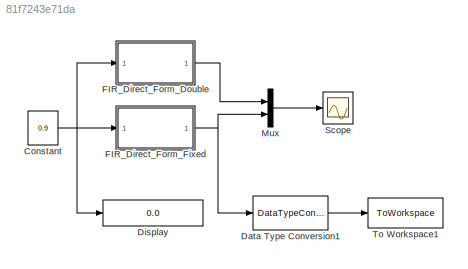
MODEL slx_81f7243e71da
KIND model
BLOCK [Constant] Constant
  OutDataTypeStr = fixdt(1,14,13)
  SampleTime = 1/50e6
  Value = 0.9
  VectorParams1D = off
BLOCK [DataTypeConversion] Data Type Conversion1
  OutDataTypeStr = double
  RndMeth = Floor
  SaturateOnIntegerOverflow = off
BLOCK [Display] Display
  Decimation = 1
  Format = long
  Lockdown = off
  Ports = [1]
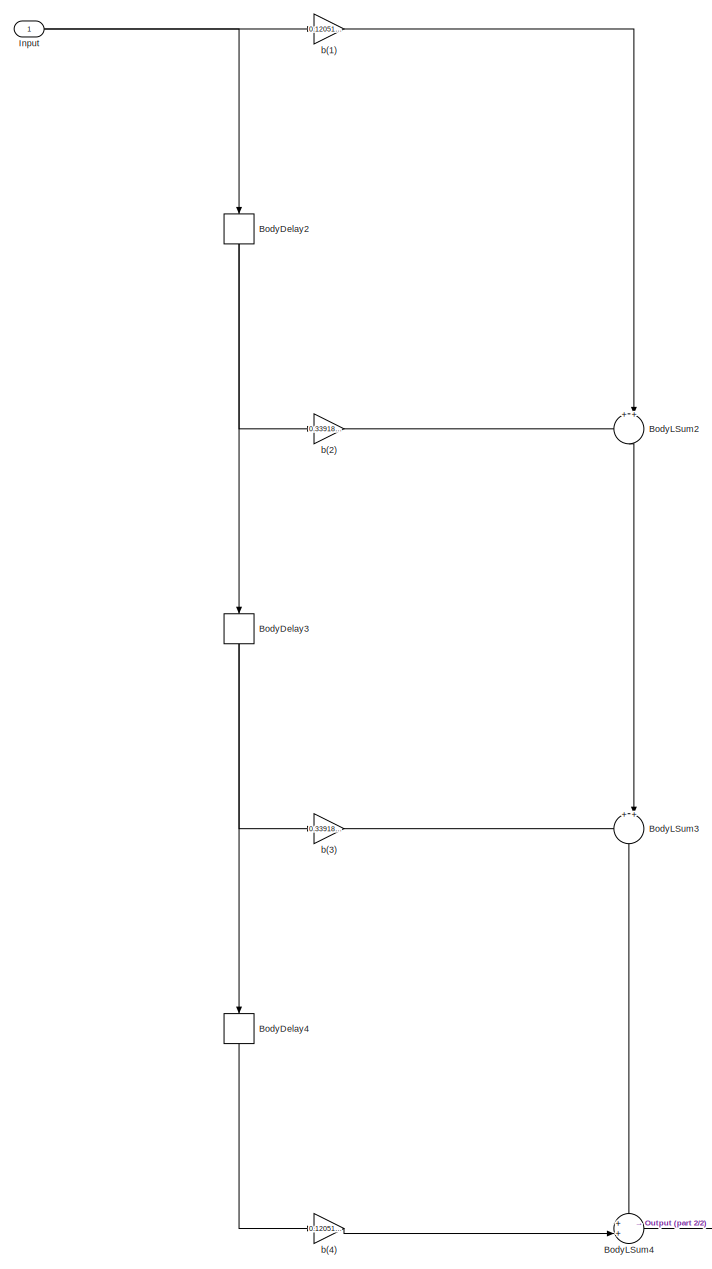
[diagram: FIR_Direct_Form_Double - part 1/2, most of the canvas]
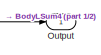
[diagram: FIR_Direct_Form_Double - part 2/2, bottom right region]
BLOCK [SubSystem] FIR_Direct_Form_Double
  ErrorFcn = dspFilterRealizedInBasicElemsAlgLoopErrFcnCallback
  FunctionWithSeparateData = off
  MaskHideContents = off
  MinAlgLoopOccurrences = off
  Opaque = off
  Ports = [1, 1]
  PropExecContextOutsideSubsystem = off
  RTWSystemCode = Auto
  RequestExecContextInheritance = off
  Tag = FilterWizardSubSystem
  UserDataPersistent = on
BLOCK [Delay] FIR_Direct_Form_Double/BodyDelay2
  DelayLength = 1
  InitialCondition = 0
  InputPortMap = u0
  Ports = [1, 1]
BLOCK [Delay] FIR_Direct_Form_Double/BodyDelay3
  DelayLength = 1
  InitialCondition = 0
  InputPortMap = u0
  Ports = [1, 1]
BLOCK [Delay] FIR_Direct_Form_Double/BodyDelay4
  DelayLength = 1
  InitialCondition = 0
  InputPortMap = u0
  Ports = [1, 1]
BLOCK [Sum] FIR_Direct_Form_Double/BodyLSum2
  IconShape = round
  InputSameDT = off
  Inputs = ++|
  Ports = [2, 1]
  RndMeth = Nearest
BLOCK [Sum] FIR_Direct_Form_Double/BodyLSum3
  IconShape = round
  InputSameDT = off
  Inputs = ++|
  Ports = [2, 1]
  RndMeth = Nearest
BLOCK [Sum] FIR_Direct_Form_Double/BodyLSum4
  IconShape = round
  InputSameDT = off
  Inputs = ++|
  Ports = [2, 1]
  RndMeth = Nearest
BLOCK [Inport] FIR_Direct_Form_Double/Input
  IconDisplay = Port number
BLOCK [Outport] FIR_Direct_Form_Double/Output
  IconDisplay = Port number
BLOCK [Gain] FIR_Direct_Form_Double/b(1)
  Gain = 0.12051560549583869
  ParamDataTypeStr = double
  RndMeth = Nearest
BLOCK [Gain] FIR_Direct_Form_Double/b(2)
  Gain = 0.33918588262345462
  ParamDataTypeStr = double
  RndMeth = Nearest
BLOCK [Gain] FIR_Direct_Form_Double/b(3)
  Gain = 0.33918588262345462
  ParamDataTypeStr = double
  RndMeth = Nearest
BLOCK [Gain] FIR_Direct_Form_Double/b(4)
  Gain = 0.12051560549583869
  ParamDataTypeStr = double
  RndMeth = Nearest
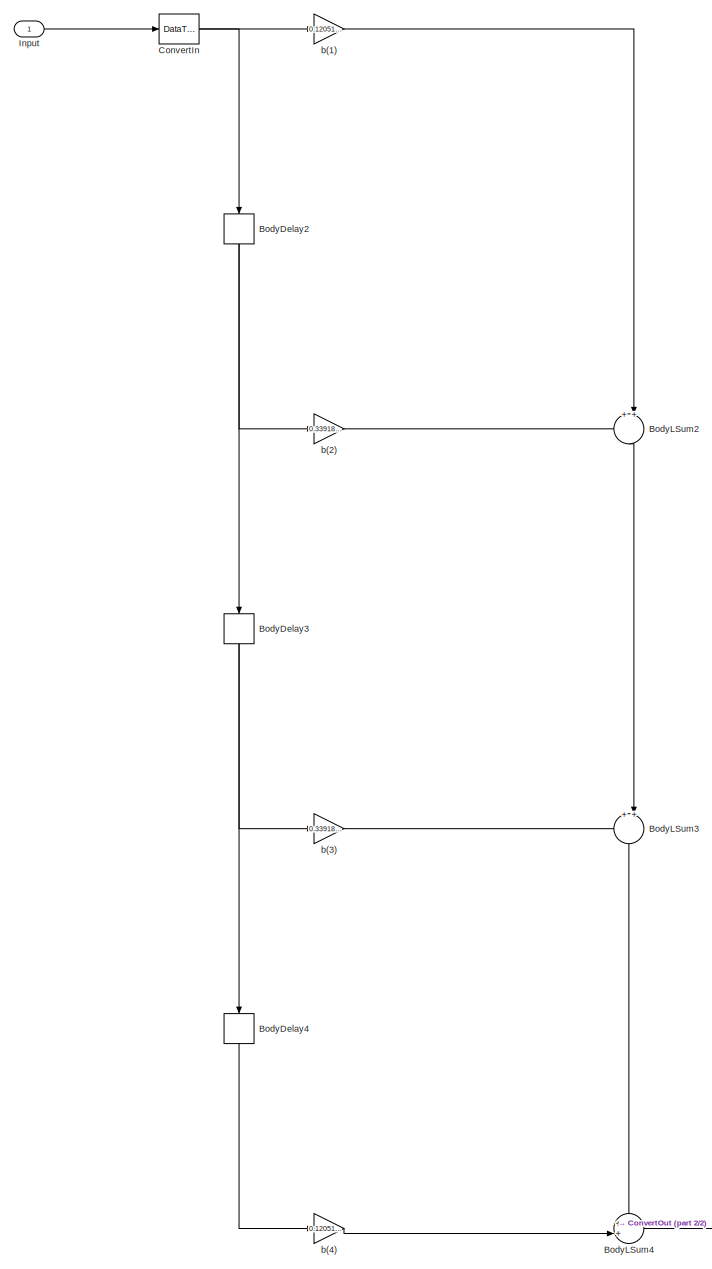
[diagram: FIR_Direct_Form_Fixed - part 1/2, most of the canvas]
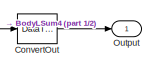
[diagram: FIR_Direct_Form_Fixed - part 2/2, bottom right region]
BLOCK [SubSystem] FIR_Direct_Form_Fixed
  ErrorFcn = dspFilterRealizedInBasicElemsAlgLoopErrFcnCallback
  FunctionWithSeparateData = off
  MaskHideContents = off
  MinAlgLoopOccurrences = off
  Opaque = off
  Ports = [1, 1]
  PropExecContextOutsideSubsystem = off
  RTWSystemCode = Auto
  RequestExecContextInheritance = off
  Tag = FilterWizardSubSystem
  UserDataPersistent = on
BLOCK [Delay] FIR_Direct_Form_Fixed/BodyDelay2
  DelayLength = 1
  InitialCondition = 0
  InputPortMap = u0
  Ports = [1, 1]
BLOCK [Delay] FIR_Direct_Form_Fixed/BodyDelay3
  DelayLength = 1
  InitialCondition = 0
  InputPortMap = u0
  Ports = [1, 1]
BLOCK [Delay] FIR_Direct_Form_Fixed/BodyDelay4
  DelayLength = 1
  InitialCondition = 0
  InputPortMap = u0
  Ports = [1, 1]
BLOCK [Sum] FIR_Direct_Form_Fixed/BodyLSum2
  AccumDataTypeStr = fixdt(1,22,21)
  IconShape = round
  InputSameDT = off
  Inputs = ++|
  OutDataTypeStr = fixdt(1,24,21)
  Ports = [2, 1]
  SaturateOnIntegerOverflow = off
BLOCK [Sum] FIR_Direct_Form_Fixed/BodyLSum3
  AccumDataTypeStr = fixdt(1,22,21)
  IconShape = round
  InputSameDT = off
  Inputs = ++|
  OutDataTypeStr = fixdt(1,24,21)
  Ports = [2, 1]
  SaturateOnIntegerOverflow = off
BLOCK [Sum] FIR_Direct_Form_Fixed/BodyLSum4
  AccumDataTypeStr = fixdt(1,22,21)
  IconShape = round
  InputSameDT = off
  Inputs = ++|
  OutDataTypeStr = fixdt(1,24,21)
  Ports = [2, 1]
  SaturateOnIntegerOverflow = off
BLOCK [DataTypeConversion] FIR_Direct_Form_Fixed/ConvertIn
  OutDataTypeStr = fixdt(1,14,13)
  RndMeth = Nearest
BLOCK [DataTypeConversion] FIR_Direct_Form_Fixed/ConvertOut
  OutDataTypeStr = fixdt(1,14,13)
  RndMeth = Floor
  SaturateOnIntegerOverflow = off
BLOCK [Inport] FIR_Direct_Form_Fixed/Input
  IconDisplay = Port number
BLOCK [Outport] FIR_Direct_Form_Fixed/Output
  IconDisplay = Port number
BLOCK [Gain] FIR_Direct_Form_Fixed/b(1)
  Gain = 0.12051560549583869
  OutDataTypeStr = fixdt(1,23,21)
  ParamDataTypeStr = fixdt(1,9,8)
  SaturateOnIntegerOverflow = off
BLOCK [Gain] FIR_Direct_Form_Fixed/b(2)
  Gain = 0.33918588262345462
  OutDataTypeStr = fixdt(1,23,21)
  ParamDataTypeStr = fixdt(1,9,8)
  SaturateOnIntegerOverflow = off
BLOCK [Gain] FIR_Direct_Form_Fixed/b(3)
  Gain = 0.33918588262345462
  OutDataTypeStr = fixdt(1,23,21)
  ParamDataTypeStr = fixdt(1,9,8)
  SaturateOnIntegerOverflow = off
BLOCK [Gain] FIR_Direct_Form_Fixed/b(4)
  Gain = 0.12051560549583869
  OutDataTypeStr = fixdt(1,23,21)
  ParamDataTypeStr = fixdt(1,9,8)
  SaturateOnIntegerOverflow = off
BLOCK [Mux] Mux
  DisplayOption = bar
  Inputs = 2
  Ports = [2, 1]
BLOCK [Scope] Scope
  DataFormat = StructureWithTime
  Floating = off
  LimitDataPoints = off
  NumInputPorts = 1
  Ports = [1]
  SampleTime = 0
  ShowLegends = off
  YMax = 0.85
  YMin = 0.1
  ZoomMode = xonly
BLOCK [ToWorkspace] To Workspace1
  MaxDataPoints = inf
  Ports = [1]
  SampleTime = -1
  SaveFormat = Timeseries
  VariableName = FIR_Output
NET Constant:1 -> Display:1, FIR_Direct_Form_Double:1, FIR_Direct_Form_Fixed:1
LINE Data Type Conversion1:1 -> To Workspace1:1
NET FIR_Direct_Form_Double/BodyDelay2:1 -> FIR_Direct_Form_Double/BodyDelay3:1, FIR_Direct_Form_Double/b(2):1
NET FIR_Direct_Form_Double/BodyDelay3:1 -> FIR_Direct_Form_Double/BodyDelay4:1, FIR_Direct_Form_Double/b(3):1
LINE FIR_Direct_Form_Double/BodyDelay4:1 -> FIR_Direct_Form_Double/b(4):1
LINE FIR_Direct_Form_Double/BodyLSum2:1 -> FIR_Direct_Form_Double/BodyLSum3:2
LINE FIR_Direct_Form_Double/BodyLSum3:1 -> FIR_Direct_Form_Double/BodyLSum4:1
LINE FIR_Direct_Form_Double/BodyLSum4:1 -> FIR_Direct_Form_Double/Output:1
NET FIR_Direct_Form_Double/Input:1 -> FIR_Direct_Form_Double/BodyDelay2:1, FIR_Direct_Form_Double/b(1):1
LINE FIR_Direct_Form_Double/b(1):1 -> FIR_Direct_Form_Double/BodyLSum2:2
LINE FIR_Direct_Form_Double/b(2):1 -> FIR_Direct_Form_Double/BodyLSum2:1
LINE FIR_Direct_Form_Double/b(3):1 -> FIR_Direct_Form_Double/BodyLSum3:1
LINE FIR_Direct_Form_Double/b(4):1 -> FIR_Direct_Form_Double/BodyLSum4:2
LINE FIR_Direct_Form_Double:1 -> Mux:1
NET FIR_Direct_Form_Fixed/BodyDelay2:1 -> FIR_Direct_Form_Fixed/BodyDelay3:1, FIR_Direct_Form_Fixed/b(2):1
NET FIR_Direct_Form_Fixed/BodyDelay3:1 -> FIR_Direct_Form_Fixed/BodyDelay4:1, FIR_Direct_Form_Fixed/b(3):1
LINE FIR_Direct_Form_Fixed/BodyDelay4:1 -> FIR_Direct_Form_Fixed/b(4):1
LINE FIR_Direct_Form_Fixed/BodyLSum2:1 -> FIR_Direct_Form_Fixed/BodyLSum3:2
LINE FIR_Direct_Form_Fixed/BodyLSum3:1 -> FIR_Direct_Form_Fixed/BodyLSum4:1
LINE FIR_Direct_Form_Fixed/BodyLSum4:1 -> FIR_Direct_Form_Fixed/ConvertOut:1
NET FIR_Direct_Form_Fixed/ConvertIn:1 -> FIR_Direct_Form_Fixed/BodyDelay2:1, FIR_Direct_Form_Fixed/b(1):1
LINE FIR_Direct_Form_Fixed/ConvertOut:1 -> FIR_Direct_Form_Fixed/Output:1
LINE FIR_Direct_Form_Fixed/Input:1 -> FIR_Direct_Form_Fixed/ConvertIn:1
LINE FIR_Direct_Form_Fixed/b(1):1 -> FIR_Direct_Form_Fixed/BodyLSum2:2
LINE FIR_Direct_Form_Fixed/b(2):1 -> FIR_Direct_Form_Fixed/BodyLSum2:1
LINE FIR_Direct_Form_Fixed/b(3):1 -> FIR_Direct_Form_Fixed/BodyLSum3:1
LINE FIR_Direct_Form_Fixed/b(4):1 -> FIR_Direct_Form_Fixed/BodyLSum4:2
NET FIR_Direct_Form_Fixed:1 -> Data Type Conversion1:1, Mux:2
LINE Mux:1 -> Scope:1
note: NET lines group one-source signal fan-out (src -> all destinations, sorted); 1:1 wires keep LINE
